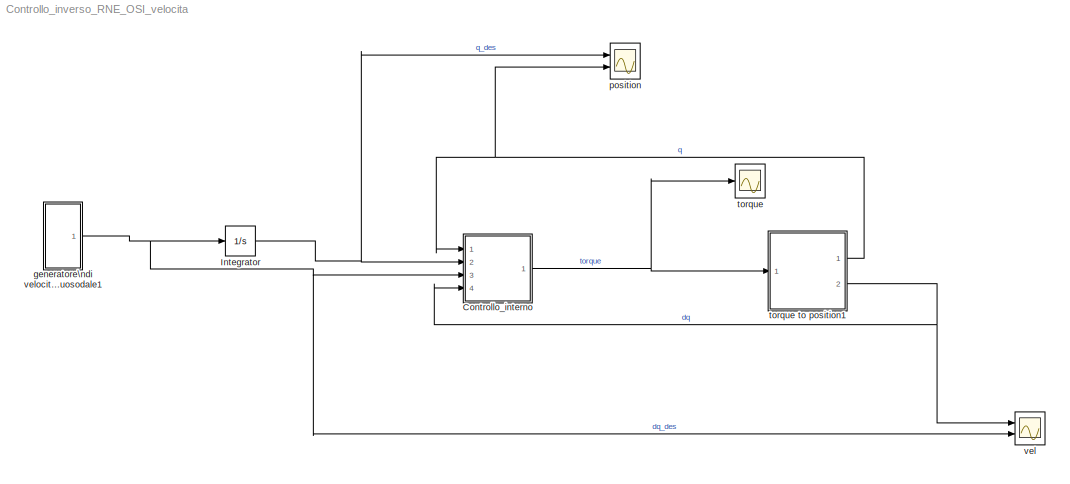
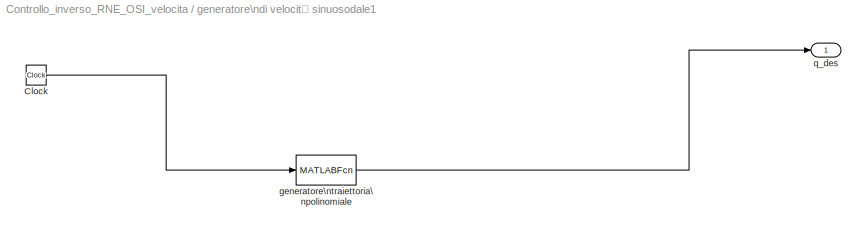
MODEL Controllo_inverso_RNE_OSI_velocita
KIND model
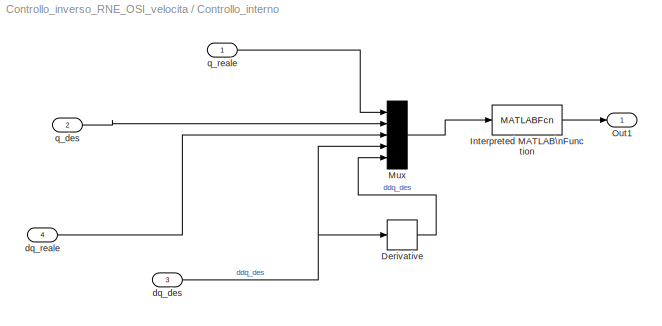
BLOCK [SubSystem] Controllo_interno
  Ports = [4, 1]
  RequestExecContextInheritance = off
  SID = 214
BLOCK [Derivative] Controllo_interno/Derivative
  SID = 219
BLOCK [MATLABFcn] Controllo_interno/Interpreted MATLAB\nFunction
  MATLABFcn = controllo_interno_RNE_OSI(robot,K,ddqmax,u)
  Ports = [1, 1]
  SID = 220
BLOCK [Mux] Controllo_interno/Mux
  DisplayOption = bar
  Inputs = 5
  Ports = [5, 1]
  SID = 221
BLOCK [Outport] Controllo_interno/Out1
  SID = 222
BLOCK [Inport] Controllo_interno/dq_des
  Port = 3
  SID = 217
BLOCK [Inport] Controllo_interno/dq_reale
  Port = 4
  SID = 218
BLOCK [Inport] Controllo_interno/q_des
  Port = 2
  SID = 216
BLOCK [Inport] Controllo_interno/q_reale
  SID = 215
BLOCK [Integrator] Integrator
  InitialCondition = q0
  Ports = [1, 1]
  SID = 192
BLOCK [SubSystem] generatore\ndi velocità sinuosodale1
  Ports = [0, 1]
  RequestExecContextInheritance = off
  SID = 236
BLOCK [Clock] generatore\ndi velocità sinuosodale1/Clock
  SID = 237
BLOCK [MATLABFcn] generatore\ndi velocità sinuosodale1/generatore\ntraiettoria\npolinomiale
  MATLABFcn = velocita_sin(A,T,dqmax,u)
  Ports = [1, 1]
  SID = 238
BLOCK [Outport] generatore\ndi velocità sinuosodale1/q_des
  SID = 239
  VectorParamsAs1DForOutWhenUnconnected = off
BLOCK [Scope] position
  Floating = off
  NumInputPorts = 2
  Ports = [2]
  SID = 223
  ScopeSpecificationString = Simulink.scopes.TimeScopeBlockCfg('CurrentConfiguration', extmgr.ConfigurationSet(extmgr.Configuration('Core','General UI',true),extmgr.Configuration('Core','Source UI',true),extmgr.Configuration('Sources','WiredSimulink',true,'DataLoggingVariableName','ScopeData1'),extmgr.Configuration('Visuals','Time Domain',true,'SerializedDisplays',{struct('MinYLimReal','-2.64899','MaxYLimReal','2.97343','YLab...<+2045ch>
BLOCK [Scope] torque
  Floating = off
  NumInputPorts = 1
  Ports = [1]
  SID = 224
  ScopeSpecificationString = Simulink.scopes.TimeScopeBlockCfg('CurrentConfiguration', extmgr.ConfigurationSet(extmgr.Configuration('Core','General UI',true),extmgr.Configuration('Core','Source UI',true),extmgr.Configuration('Sources','WiredSimulink',true,'DataLoggingVariableName','ScopeData2'),extmgr.Configuration('Visuals','Time Domain',true,'SerializedDisplays',{struct('MinYLimReal','-17.10872','MaxYLimReal','26.26325','YL...<+1692ch>
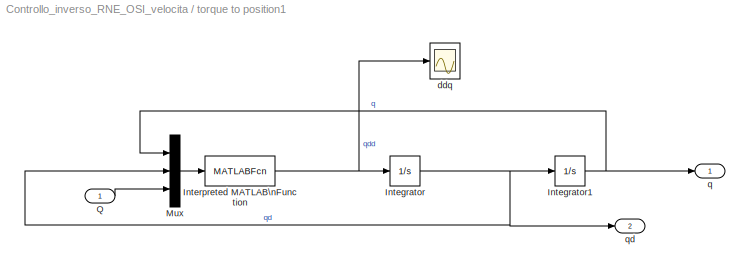
BLOCK [SubSystem] torque to position1
  Ports = [1, 2]
  RequestExecContextInheritance = off
  SID = 225
BLOCK [Integrator] torque to position1/Integrator
  InitialCondition = dq0
  LowerSaturationLimit = -dqmax
  Ports = [1, 1]
  SID = 227
  UpperSaturationLimit = dqmax
BLOCK [Integrator] torque to position1/Integrator1
  InitialCondition = q0
  LowerSaturationLimit = qmin
  Ports = [1, 1]
  SID = 228
  UpperSaturationLimit = qmax2
BLOCK [MATLABFcn] torque to position1/Interpreted MATLAB\nFunction
  MATLABFcn = accel_panda_RNE_OSI(robot,u)
  Ports = [1, 1]
  SID = 229
BLOCK [Mux] torque to position1/Mux
  DisplayOption = bar
  Inputs = 3
  Ports = [3, 1]
  SID = 230
BLOCK [Inport] torque to position1/Q
  SID = 226
BLOCK [Scope] torque to position1/ddq
  Floating = off
  NumInputPorts = 1
  Ports = [1]
  SID = 231
  ScopeSpecificationString = Simulink.scopes.TimeScopeBlockCfg('CurrentConfiguration', extmgr.ConfigurationSet(extmgr.Configuration('Core','General UI',true),extmgr.Configuration('Core','Source UI',true),extmgr.Configuration('Sources','WiredSimulink',true,'DataLoggingVariableName','ScopeData2'),extmgr.Configuration('Visuals','Time Domain',true,'SerializedDisplays',{struct('MinYLimReal','-1.63177','MaxYLimReal','1.63177','YLab...<+1803ch>
BLOCK [Outport] torque to position1/q
  SID = 232
  VectorParamsAs1DForOutWhenUnconnected = off
BLOCK [Outport] torque to position1/qd
  Port = 2
  SID = 233
  VectorParamsAs1DForOutWhenUnconnected = off
BLOCK [Scope] vel
  Floating = off
  NumInputPorts = 2
  Ports = [2]
  SID = 234
  ScopeSpecificationString = Simulink.scopes.TimeScopeBlockCfg('CurrentConfiguration', extmgr.ConfigurationSet(extmgr.Configuration('Core','General UI',true),extmgr.Configuration('Core','Source UI',true),extmgr.Configuration('Sources','WiredSimulink',true,'DataLoggingVariableName','ScopeData3'),extmgr.Configuration('Visuals','Time Domain',true,'SerializedDisplays',{struct('MinYLimReal','-0.62785','MaxYLimReal','0.33701','YLab...<+1921ch>
LINE Controllo_interno/Derivative:1 -> Controllo_interno/Mux:5
LINE Controllo_interno/Interpreted MATLAB\nFunction:1 -> Controllo_interno/Out1:1
LINE Controllo_interno/Mux:1 -> Controllo_interno/Interpreted MATLAB\nFunction:1
NET Controllo_interno/dq_des:1 -> Controllo_interno/Derivative:1, Controllo_interno/Mux:4
LINE Controllo_interno/dq_reale:1 -> Controllo_interno/Mux:3
LINE Controllo_interno/q_des:1 -> Controllo_interno/Mux:2
LINE Controllo_interno/q_reale:1 -> Controllo_interno/Mux:1
NET Controllo_interno:1 -> torque to position1:1, torque:1
NET Integrator:1 -> Controllo_interno:2, position:1
LINE generatore\ndi velocità sinuosodale1/Clock:1 -> generatore\ndi velocità sinuosodale1/generatore\ntraiettoria\npolinomiale:1
LINE generatore\ndi velocità sinuosodale1/generatore\ntraiettoria\npolinomiale:1 -> generatore\ndi velocità sinuosodale1/q_des:1
NET generatore\ndi velocità sinuosodale1:1 -> Controllo_interno:3, Integrator:1, vel:2
NET torque to position1/Integrator1:1 -> torque to position1/Mux:1, torque to position1/q:1
NET torque to position1/Integrator:1 -> torque to position1/Integrator1:1, torque to position1/Mux:2, torque to position1/qd:1
NET torque to position1/Interpreted MATLAB\nFunction:1 -> torque to position1/Integrator:1, torque to position1/ddq:1
LINE torque to position1/Mux:1 -> torque to position1/Interpreted MATLAB\nFunction:1
LINE torque to position1/Q:1 -> torque to position1/Mux:3
NET torque to position1:1 -> Controllo_interno:1, position:2
NET torque to position1:2 -> Controllo_interno:4, vel:1
note: NET lines group one-source signal fan-out (src -> all destinations, sorted); 1:1 wires keep LINE
